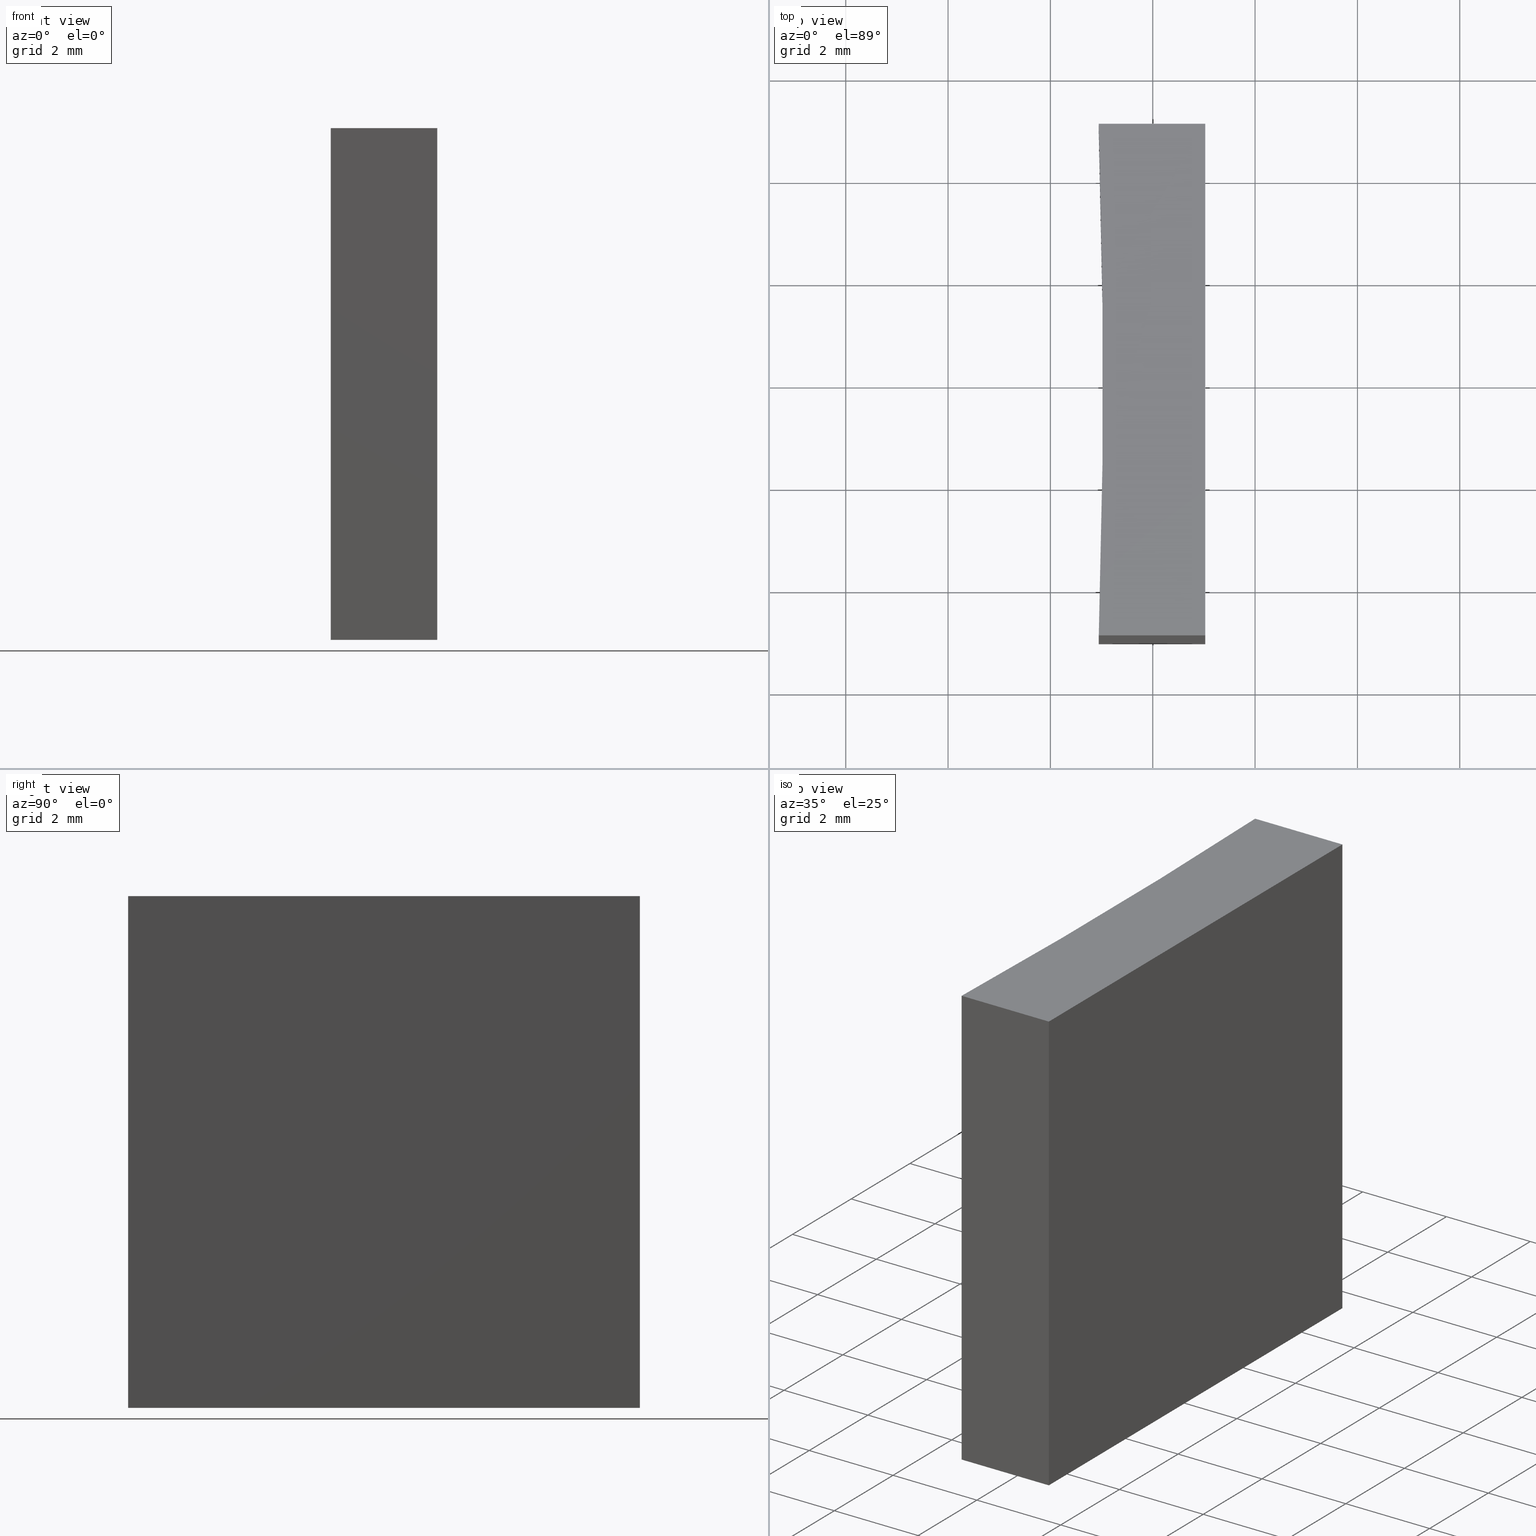
[diagram: canonical four-view strip — front | top / right | iso, engineering-drawing reading convention]
A machine part, canonical four-view strip (front | top / right | iso — engineering-drawing reading convention). The complete STEP part file that produces these views, byte-faithful:
ISO-10303-21;
HEADER;
FILE_DESCRIPTION (( 'STEP AP203' ),
    '1' );
FILE_NAME ('155572.STEP',
    '2024-05-13T06:22:32',
    ( '' ),
    ( '' ),
    'SwSTEP 2.0',
    'SolidWorks 2020',
    '' );
FILE_SCHEMA (( 'CONFIG_CONTROL_DESIGN' ));
ENDSEC;

DATA;
#1 = PERSON_AND_ORGANIZATION ( #166, #24 ) ;
#2 = PLANE ( 'NONE',  #80 ) ;
#3 = DATE_TIME_ROLE ( 'creation_date' ) ;
#4 = CALENDAR_DATE ( 2024, 13, 5 ) ;
#5 = DATE_TIME_ROLE ( 'classification_date' ) ;
#6 = ORIENTED_EDGE ( 'NONE', *, *, #120, .F. ) ;
#7 = VERTEX_POINT ( 'NONE', #112 ) ;
#8 = ORIENTED_EDGE ( 'NONE', *, *, #207, .F. ) ;
#9 = CC_DESIGN_PERSON_AND_ORGANIZATION_ASSIGNMENT ( #69, #12, ( #230 ) ) ;
#10 = CARTESIAN_POINT ( 'NONE',  ( 70.94557387853005537, -41.01151266271152451, 10.00000000000000000 ) ) ;
#11 = APPROVAL_STATUS ( 'not_yet_approved' ) ;
#12 = PERSON_AND_ORGANIZATION_ROLE ( 'design_owner' ) ;
#13 = CARTESIAN_POINT ( 'NONE',  ( -84.07381200594568327, -46.01151266271130424, 10.00000000000000000 ) ) ;
#14 = EDGE_CURVE ( 'NONE', #208, #173, #41, .T. ) ;
#15 = FACE_OUTER_BOUND ( 'NONE', #77, .T. ) ;
#16 = DIRECTION ( 'NONE',  ( 1.000000000000000000, 0.000000000000000000, -0.000000000000000000 ) ) ;
#17 = AXIS2_PLACEMENT_3D ( 'NONE', #213, #105, #110 ) ;
#18 = PERSON_AND_ORGANIZATION_ROLE ( 'creator' ) ;
#19 = LINE ( 'NONE', #212, #175 ) ;
#20 = APPROVAL_ROLE ( '' ) ;
#21 = EDGE_CURVE ( 'NONE', #224, #128, #205, .T. ) ;
#22 = ORIENTED_EDGE ( 'NONE', *, *, #14, .T. ) ;
#23 = DIRECTION ( 'NONE',  ( -0.000000000000000000, -0.000000000000000000, -1.000000000000000000 ) ) ;
#24 = ORGANIZATION ( 'δָ��', 'δָ��', '' ) ;
#25 = ORIENTED_EDGE ( 'NONE', *, *, #21, .F. ) ;
#26 = APPROVAL ( #11, 'δָ��' ) ;
#27 = EDGE_LOOP ( 'NONE', ( #225, #148, #169, #130 ) ) ;
#28 = VECTOR ( 'NONE', #178, 1000.000000000000000 ) ;
#29 = APPROVAL_DATE_TIME ( #53, #95 ) ;
#30 = CARTESIAN_POINT ( 'NONE',  ( 70.94557387853004116, -51.01151266271151030, 10.00000000000000000 ) ) ;
#31 = EDGE_CURVE ( 'NONE', #224, #7, #94, .T. ) ;
#32 = DIRECTION ( 'NONE',  ( 1.000000000000000000, -6.672013369141570542E-15, 0.000000000000000000 ) ) ;
#33 = PERSON_AND_ORGANIZATION ( #166, #24 ) ;
#34 = DIRECTION ( 'NONE',  ( -0.000000000000000000, -0.000000000000000000, -1.000000000000000000 ) ) ;
#35 = DATE_AND_TIME ( #144, #136 ) ;
#36 = PLANE ( 'NONE',  #17 ) ;
#37 = SHAPE_DEFINITION_REPRESENTATION ( #64, #233 ) ;
#38 = PRODUCT_RELATED_PRODUCT_CATEGORY ( 'detail', '', ( #230 ) ) ;
#39 = VECTOR ( 'NONE', #87, 1000.000000000000000 ) ;
#40 = SECURITY_CLASSIFICATION ( '', '', #104 ) ;
#41 = LINE ( 'NONE', #187, #165 ) ;
#42 = CARTESIAN_POINT ( 'NONE',  ( 73.02557387853005366, -41.01151266271152451, 10.00000000000000000 ) ) ;
#43 = ORIENTED_EDGE ( 'NONE', *, *, #57, .T. ) ;
#44 = AXIS2_PLACEMENT_3D ( 'NONE', #13, #34, #182 ) ;
#45 = ORIENTED_EDGE ( 'NONE', *, *, #97, .T. ) ;
#46 = CIRCLE ( 'NONE', #185, 155.0999999999999659 ) ;
#47 = FACE_OUTER_BOUND ( 'NONE', #113, .T. ) ;
#48 = DIRECTION ( 'NONE',  ( -0.000000000000000000, -0.000000000000000000, -1.000000000000000000 ) ) ;
#49 = DIRECTION ( 'NONE',  ( 1.000000000000000000, 0.000000000000000000, 0.000000000000000000 ) ) ;
#50 = DIRECTION ( 'NONE',  ( -1.000000000000000000, -0.000000000000000000, -0.000000000000000000 ) ) ;
#51 = CALENDAR_DATE ( 2024, 13, 5 ) ;
#52 = DIRECTION ( 'NONE',  ( -1.387778780781445478E-15, -1.000000000000000000, 0.000000000000000000 ) ) ;
#53 = DATE_AND_TIME ( #118, #203 ) ;
#54 = APPROVAL_STATUS ( 'not_yet_approved' ) ;
#55 = CC_DESIGN_PERSON_AND_ORGANIZATION_ASSIGNMENT ( #33, #18, ( #164 ) ) ;
#56 = VERTEX_POINT ( 'NONE', #115 ) ;
#57 = EDGE_CURVE ( 'NONE', #61, #208, #119, .T. ) ;
#58 = AXIS2_PLACEMENT_3D ( 'NONE', #10, #84, #235 ) ;
#59 = PRODUCT_DEFINITION_FORMATION_WITH_SPECIFIED_SOURCE ( '�κ�', '', #230, .NOT_KNOWN. ) ;
#60 = EDGE_LOOP ( 'NONE', ( #45, #6, #209, #228 ) ) ;
#61 = VERTEX_POINT ( 'NONE', #85 ) ;
#62 = CLOSED_SHELL ( 'NONE', ( #132, #145, #189, #206, #227, #81 ) ) ;
#63 = ORIENTED_EDGE ( 'NONE', *, *, #186, .T. ) ;
#64 = PRODUCT_DEFINITION_SHAPE ( 'NONE', 'NONE',  #164 ) ;
#65 = DIRECTION ( 'NONE',  ( -0.000000000000000000, -0.000000000000000000, -1.000000000000000000 ) ) ;
#66 = DIRECTION ( 'NONE',  ( 1.000000000000000000, 0.000000000000000000, 0.000000000000000000 ) ) ;
#67 = CC_DESIGN_APPROVAL ( #26, ( #59 ) ) ;
#68 = DIRECTION ( 'NONE',  ( -0.000000000000000000, -0.000000000000000000, -1.000000000000000000 ) ) ;
#69 = PERSON_AND_ORGANIZATION ( #166, #24 ) ;
#70 = CYLINDRICAL_SURFACE ( 'NONE', #44, 155.0999999999999659 ) ;
#71 = APPROVAL_DATE_TIME ( #35, #26 ) ;
#72 = CARTESIAN_POINT ( 'NONE',  ( 73.02557387853005366, -41.01151266271152451, 10.00000000000000000 ) ) ;
#73 = CARTESIAN_POINT ( 'NONE',  ( 73.02557387853005366, -41.01151266271152451, 10.00000000000000000 ) ) ;
#74 = DIRECTION ( 'NONE',  ( 0.000000000000000000, 0.000000000000000000, 1.000000000000000000 ) ) ;
#75 = PERSON_AND_ORGANIZATION_ROLE ( 'design_supplier' ) ;
#76 = ORIENTED_EDGE ( 'NONE', *, *, #120, .T. ) ;
#77 = EDGE_LOOP ( 'NONE', ( #22, #8, #146, #43 ) ) ;
#78 = APPLICATION_CONTEXT ( 'configuration controlled 3d designs of mechanical parts and assemblies' ) ;
#79 = CC_DESIGN_PERSON_AND_ORGANIZATION_ASSIGNMENT ( #1, #202, ( #59 ) ) ;
#80 = AXIS2_PLACEMENT_3D ( 'NONE', #72, #152, #52 ) ;
#81 = ADVANCED_FACE ( 'NONE', ( #140 ), #155, .F. ) ;
#82 = EDGE_LOOP ( 'NONE', ( #192, #25, #125, #204 ) ) ;
#83 = APPROVAL ( #54, 'δָ��' ) ;
#84 = DIRECTION ( 'NONE',  ( 0.000000000000000000, -1.000000000000000000, 0.000000000000000000 ) ) ;
#85 = CARTESIAN_POINT ( 'NONE',  ( 70.94557387853004116, -51.01151266271151030, 10.00000000000000000 ) ) ;
#86 = PERSON_AND_ORGANIZATION_ROLE ( 'classification_officer' ) ;
#87 = DIRECTION ( 'NONE',  ( 1.387778780781445478E-15, 1.000000000000000000, -0.000000000000000000 ) ) ;
#88 = CC_DESIGN_APPROVAL ( #95, ( #164 ) ) ;
#89 = CC_DESIGN_APPROVAL ( #83, ( #40 ) ) ;
#90 =( NAMED_UNIT ( * ) PLANE_ANGLE_UNIT ( ) SI_UNIT ( $, .RADIAN. ) );
#91 = CARTESIAN_POINT ( 'NONE',  ( -84.07381200594568327, -46.01151266271130424, 0.000000000000000000 ) ) ;
#92 = DATE_AND_TIME ( #51, #149 ) ;
#93 = VECTOR ( 'NONE', #23, 1000.000000000000000 ) ;
#94 = LINE ( 'NONE', #108, #129 ) ;
#95 = APPROVAL ( #181, 'δָ��' ) ;
#96 = VECTOR ( 'NONE', #32, 1000.000000000000000 ) ;
#97 = EDGE_CURVE ( 'NONE', #128, #56, #151, .T. ) ;
#98 = APPROVAL_PERSON_ORGANIZATION ( #121, #83, #163 ) ;
#99 = EDGE_LOOP ( 'NONE', ( #63, #100, #229, #150 ) ) ;
#100 = ORIENTED_EDGE ( 'NONE', *, *, #137, .T. ) ;
#101 = DIRECTION ( 'NONE',  ( -0.000000000000000000, -0.000000000000000000, -1.000000000000000000 ) ) ;
#102 = PERSON_AND_ORGANIZATION ( #166, #24 ) ;
#103 = CARTESIAN_POINT ( 'NONE',  ( 73.02557387853005366, -41.01151266271152451, 0.000000000000000000 ) ) ;
#104 = SECURITY_CLASSIFICATION_LEVEL ( 'unclassified' ) ;
#105 = DIRECTION ( 'NONE',  ( 6.672013369141570542E-15, 1.000000000000000000, -0.000000000000000000 ) ) ;
#106 =( LENGTH_UNIT ( ) NAMED_UNIT ( * ) SI_UNIT ( .MILLI., .METRE. ) );
#107 = APPLICATION_PROTOCOL_DEFINITION ( 'international standard', 'config_control_design', 1994, #78 ) ;
#108 = CARTESIAN_POINT ( 'NONE',  ( 70.94557387853005537, -41.01151266271152451, 10.00000000000000000 ) ) ;
#109 = PERSON_AND_ORGANIZATION ( #166, #24 ) ;
#110 = DIRECTION ( 'NONE',  ( -1.000000000000000000, 6.672013369141570542E-15, 0.000000000000000000 ) ) ;
#111 = MANIFOLD_SOLID_BREP ( '͹̨-����1', #62 ) ;
#112 = CARTESIAN_POINT ( 'NONE',  ( 70.94557387853005537, -41.01151266271152451, 10.00000000000000000 ) ) ;
#113 = EDGE_LOOP ( 'NONE', ( #188, #231, #174, #76 ) ) ;
#114 = CC_DESIGN_DATE_AND_TIME_ASSIGNMENT ( #123, #3, ( #164 ) ) ;
#115 = CARTESIAN_POINT ( 'NONE',  ( 70.94557387853005537, -41.01151266271152451, 0.000000000000000000 ) ) ;
#116 = LINE ( 'NONE', #176, #39 ) ;
#117 = CARTESIAN_POINT ( 'NONE',  ( -84.07381200594568327, -46.01151266271130424, 10.00000000000000000 ) ) ;
#118 = CALENDAR_DATE ( 2024, 13, 5 ) ;
#119 = LINE ( 'NONE', #234, #28 ) ;
#120 = EDGE_CURVE ( 'NONE', #7, #56, #19, .T. ) ;
#121 = PERSON_AND_ORGANIZATION ( #166, #24 ) ;
#122 = FACE_OUTER_BOUND ( 'NONE', #60, .T. ) ;
#123 = DATE_AND_TIME ( #4, #147 ) ;
#124 = CC_DESIGN_DATE_AND_TIME_ASSIGNMENT ( #92, #5, ( #40 ) ) ;
#125 = ORIENTED_EDGE ( 'NONE', *, *, #232, .F. ) ;
#126 = VECTOR ( 'NONE', #177, 1000.000000000000000 ) ;
#127 = CC_DESIGN_SECURITY_CLASSIFICATION ( #40, ( #59 ) ) ;
#128 = VERTEX_POINT ( 'NONE', #103 ) ;
#129 = VECTOR ( 'NONE', #50, 1000.000000000000000 ) ;
#130 = ORIENTED_EDGE ( 'NONE', *, *, #14, .F. ) ;
#131 = VERTEX_POINT ( 'NONE', #133 ) ;
#132 = ADVANCED_FACE ( 'NONE', ( #47 ), #70, .F. ) ;
#133 = CARTESIAN_POINT ( 'NONE',  ( 73.02557387853003945, -51.01151266271152451, 10.00000000000000000 ) ) ;
#134 = APPROVAL_PERSON_ORGANIZATION ( #139, #95, #198 ) ;
#135 = LINE ( 'NONE', #153, #223 ) ;
#136 = LOCAL_TIME ( 14, 22, 32.00000000000000000, #141 ) ;
#137 = EDGE_CURVE ( 'NONE', #61, #131, #196, .T. ) ;
#138 = CARTESIAN_POINT ( 'NONE',  ( 70.94557387853004116, -51.01151266271151030, 0.000000000000000000 ) ) ;
#139 = PERSON_AND_ORGANIZATION ( #166, #24 ) ;
#140 = FACE_OUTER_BOUND ( 'NONE', #27, .T. ) ;
#141 = COORDINATED_UNIVERSAL_TIME_OFFSET ( 8, 0, .AHEAD. ) ;
#142 = FACE_OUTER_BOUND ( 'NONE', #82, .T. ) ;
#143 =( NAMED_UNIT ( * ) SI_UNIT ( $, .STERADIAN. ) SOLID_ANGLE_UNIT ( ) );
#144 = CALENDAR_DATE ( 2024, 13, 5 ) ;
#145 = ADVANCED_FACE ( 'NONE', ( #15 ), #36, .F. ) ;
#146 = ORIENTED_EDGE ( 'NONE', *, *, #137, .F. ) ;
#147 = LOCAL_TIME ( 14, 22, 32.00000000000000000, #161 ) ;
#148 = ORIENTED_EDGE ( 'NONE', *, *, #97, .F. ) ;
#149 = LOCAL_TIME ( 14, 22, 32.00000000000000000, #183 ) ;
#150 = ORIENTED_EDGE ( 'NONE', *, *, #31, .T. ) ;
#151 = LINE ( 'NONE', #239, #226 ) ;
#152 = DIRECTION ( 'NONE',  ( -1.000000000000000000, 1.387778780781445478E-15, 0.000000000000000000 ) ) ;
#153 = CARTESIAN_POINT ( 'NONE',  ( 73.02557387853003945, -51.01151266271152451, 10.00000000000000000 ) ) ;
#154 = APPLICATION_PROTOCOL_DEFINITION ( 'international standard', 'config_control_design', 1994, #222 ) ;
#155 = PLANE ( 'NONE',  #193 ) ;
#156 =( GEOMETRIC_REPRESENTATION_CONTEXT ( 3 ) GLOBAL_UNCERTAINTY_ASSIGNED_CONTEXT ( ( #160 ) ) GLOBAL_UNIT_ASSIGNED_CONTEXT ( ( #106, #90, #143 ) ) REPRESENTATION_CONTEXT ( 'NONE', 'WORKASPACE' ) );
#157 = DATE_AND_TIME ( #221, #172 ) ;
#158 = DIRECTION ( 'NONE',  ( 1.000000000000000000, 0.000000000000000000, 0.000000000000000000 ) ) ;
#159 = DIRECTION ( 'NONE',  ( 0.000000000000000000, 0.000000000000000000, 1.000000000000000000 ) ) ;
#160 = UNCERTAINTY_MEASURE_WITH_UNIT (LENGTH_MEASURE( 1.000000000000000082E-05 ), #106, 'distance_accuracy_value', 'NONE');
#161 = COORDINATED_UNIVERSAL_TIME_OFFSET ( 8, 0, .AHEAD. ) ;
#162 = DIRECTION ( 'NONE',  ( -1.000000000000000000, -0.000000000000000000, -0.000000000000000000 ) ) ;
#163 = APPROVAL_ROLE ( '' ) ;
#164 = PRODUCT_DEFINITION ( 'δ֪', '', #59, #220 ) ;
#165 = VECTOR ( 'NONE', #168, 1000.000000000000000 ) ;
#166 = PERSON ( 'δָ��', 'δָ��', 'δָ��', ('δָ��'), ('δָ��'), ('δָ��') ) ;
#167 = EDGE_CURVE ( 'NONE', #56, #208, #46, .T. ) ;
#168 = DIRECTION ( 'NONE',  ( 1.000000000000000000, -6.672013369141570542E-15, 0.000000000000000000 ) ) ;
#169 = ORIENTED_EDGE ( 'NONE', *, *, #184, .F. ) ;
#170 = CC_DESIGN_PERSON_AND_ORGANIZATION_ASSIGNMENT ( #200, #75, ( #59 ) ) ;
#171 = CIRCLE ( 'NONE', #190, 155.0999999999999659 ) ;
#172 = LOCAL_TIME ( 14, 22, 32.00000000000000000, #217 ) ;
#173 = VERTEX_POINT ( 'NONE', #218 ) ;
#174 = ORIENTED_EDGE ( 'NONE', *, *, #186, .F. ) ;
#175 = VECTOR ( 'NONE', #65, 1000.000000000000000 ) ;
#176 = CARTESIAN_POINT ( 'NONE',  ( 73.02557387853005366, -41.01151266271152451, 0.000000000000000000 ) ) ;
#177 = DIRECTION ( 'NONE',  ( 1.387778780781445478E-15, 1.000000000000000000, -0.000000000000000000 ) ) ;
#178 = DIRECTION ( 'NONE',  ( -0.000000000000000000, -0.000000000000000000, -1.000000000000000000 ) ) ;
#179 = APPROVAL_DATE_TIME ( #157, #83 ) ;
#180 = CARTESIAN_POINT ( 'NONE',  ( -84.07381200594568327, -46.01151266271130424, 0.000000000000000000 ) ) ;
#181 = APPROVAL_STATUS ( 'not_yet_approved' ) ;
#182 = DIRECTION ( 'NONE',  ( -1.000000000000000000, 0.000000000000000000, 0.000000000000000000 ) ) ;
#183 = COORDINATED_UNIVERSAL_TIME_OFFSET ( 8, 0, .AHEAD. ) ;
#184 = EDGE_CURVE ( 'NONE', #173, #128, #116, .T. ) ;
#185 = AXIS2_PLACEMENT_3D ( 'NONE', #180, #48, #158 ) ;
#186 = EDGE_CURVE ( 'NONE', #7, #61, #171, .T. ) ;
#187 = CARTESIAN_POINT ( 'NONE',  ( 70.94557387853004116, -51.01151266271151030, 0.000000000000000000 ) ) ;
#188 = ORIENTED_EDGE ( 'NONE', *, *, #167, .T. ) ;
#189 = ADVANCED_FACE ( 'NONE', ( #142 ), #2, .F. ) ;
#190 = AXIS2_PLACEMENT_3D ( 'NONE', #197, #101, #66 ) ;
#191 = APPROVAL_PERSON_ORGANIZATION ( #102, #26, #20 ) ;
#192 = ORIENTED_EDGE ( 'NONE', *, *, #184, .T. ) ;
#193 = AXIS2_PLACEMENT_3D ( 'NONE', #91, #216, #199 ) ;
#194 = CARTESIAN_POINT ( 'NONE',  ( 73.02557387853005366, -41.01151266271152451, 10.00000000000000000 ) ) ;
#195 = COORDINATED_UNIVERSAL_TIME_OFFSET ( 8, 0, .AHEAD. ) ;
#196 = LINE ( 'NONE', #30, #96 ) ;
#197 = CARTESIAN_POINT ( 'NONE',  ( -84.07381200594568327, -46.01151266271130424, 10.00000000000000000 ) ) ;
#198 = APPROVAL_ROLE ( '' ) ;
#199 = DIRECTION ( 'NONE',  ( 1.000000000000000000, 0.000000000000000000, -0.000000000000000000 ) ) ;
#200 = PERSON_AND_ORGANIZATION ( #166, #24 ) ;
#201 = PLANE ( 'NONE',  #58 ) ;
#202 = PERSON_AND_ORGANIZATION_ROLE ( 'creator' ) ;
#203 = LOCAL_TIME ( 14, 22, 32.00000000000000000, #195 ) ;
#204 = ORIENTED_EDGE ( 'NONE', *, *, #207, .T. ) ;
#205 = LINE ( 'NONE', #42, #93 ) ;
#206 = ADVANCED_FACE ( 'NONE', ( #122 ), #201, .F. ) ;
#207 = EDGE_CURVE ( 'NONE', #131, #173, #135, .T. ) ;
#208 = VERTEX_POINT ( 'NONE', #138 ) ;
#209 = ORIENTED_EDGE ( 'NONE', *, *, #31, .F. ) ;
#210 = CC_DESIGN_PERSON_AND_ORGANIZATION_ASSIGNMENT ( #109, #86, ( #40 ) ) ;
#211 = AXIS2_PLACEMENT_3D ( 'NONE', #117, #159, #16 ) ;
#212 = CARTESIAN_POINT ( 'NONE',  ( 70.94557387853005537, -41.01151266271152451, 10.00000000000000000 ) ) ;
#213 = CARTESIAN_POINT ( 'NONE',  ( 70.94557387853004116, -51.01151266271151030, 10.00000000000000000 ) ) ;
#214 = LINE ( 'NONE', #194, #126 ) ;
#215 = CARTESIAN_POINT ( 'NONE',  ( 0.000000000000000000, 0.000000000000000000, 0.000000000000000000 ) ) ;
#216 = DIRECTION ( 'NONE',  ( 0.000000000000000000, 0.000000000000000000, 1.000000000000000000 ) ) ;
#217 = COORDINATED_UNIVERSAL_TIME_OFFSET ( 8, 0, .AHEAD. ) ;
#218 = CARTESIAN_POINT ( 'NONE',  ( 73.02557387853003945, -51.01151266271152451, 0.000000000000000000 ) ) ;
#219 = PLANE ( 'NONE',  #211 ) ;
#220 = DESIGN_CONTEXT ( 'detailed design', #78, 'design' ) ;
#221 = CALENDAR_DATE ( 2024, 13, 5 ) ;
#222 = APPLICATION_CONTEXT ( 'configuration controlled 3d designs of mechanical parts and assemblies' ) ;
#223 = VECTOR ( 'NONE', #68, 1000.000000000000000 ) ;
#224 = VERTEX_POINT ( 'NONE', #73 ) ;
#225 = ORIENTED_EDGE ( 'NONE', *, *, #167, .F. ) ;
#226 = VECTOR ( 'NONE', #162, 1000.000000000000000 ) ;
#227 = ADVANCED_FACE ( 'NONE', ( #236 ), #219, .T. ) ;
#228 = ORIENTED_EDGE ( 'NONE', *, *, #21, .T. ) ;
#229 = ORIENTED_EDGE ( 'NONE', *, *, #232, .T. ) ;
#230 = PRODUCT ( '155572', '155572', '', ( #238 ) ) ;
#231 = ORIENTED_EDGE ( 'NONE', *, *, #57, .F. ) ;
#232 = EDGE_CURVE ( 'NONE', #131, #224, #214, .T. ) ;
#233 = ADVANCED_BREP_SHAPE_REPRESENTATION ( '155572', ( #111, #237 ), #156 ) ;
#234 = CARTESIAN_POINT ( 'NONE',  ( 70.94557387853004116, -51.01151266271151030, 10.00000000000000000 ) ) ;
#235 = DIRECTION ( 'NONE',  ( 0.000000000000000000, -0.000000000000000000, -1.000000000000000000 ) ) ;
#236 = FACE_OUTER_BOUND ( 'NONE', #99, .T. ) ;
#237 = AXIS2_PLACEMENT_3D ( 'NONE', #215, #74, #49 ) ;
#238 = MECHANICAL_CONTEXT ( 'NONE', #222, 'mechanical' ) ;
#239 = CARTESIAN_POINT ( 'NONE',  ( 70.94557387853005537, -41.01151266271152451, 0.000000000000000000 ) ) ;
ENDSEC;
END-ISO-10303-21;
